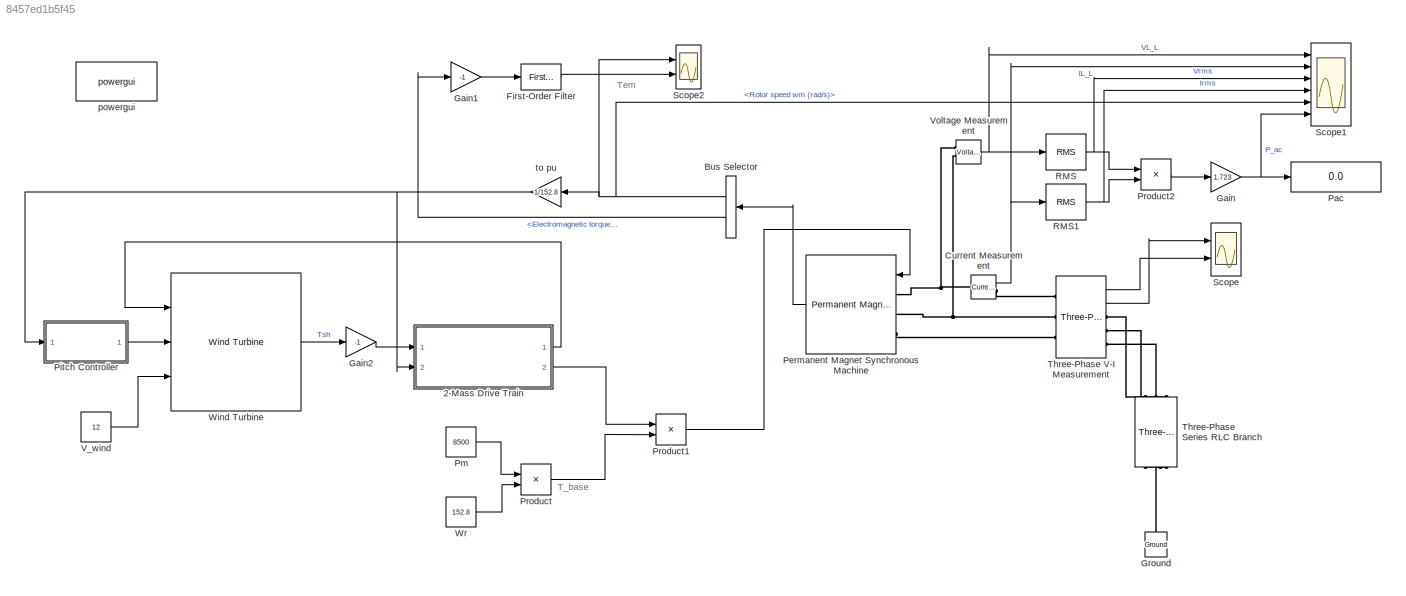
MODEL slx_8457ed1b5f45
KIND model
CONFIG AbsTol = auto
CONFIG EnableMultiTasking = off
CONFIG FixedStep = 10e-6
CONFIG MaxStep = auto
CONFIG MinStep = auto
CONFIG RelTol = 1e-3
CONFIG SampleTimeConstraint = Unconstrained
CONFIG Solver = ode4
CONFIG SolverName = ode4
CONFIG StartTime = 0.0
CONFIG StopTime = 15
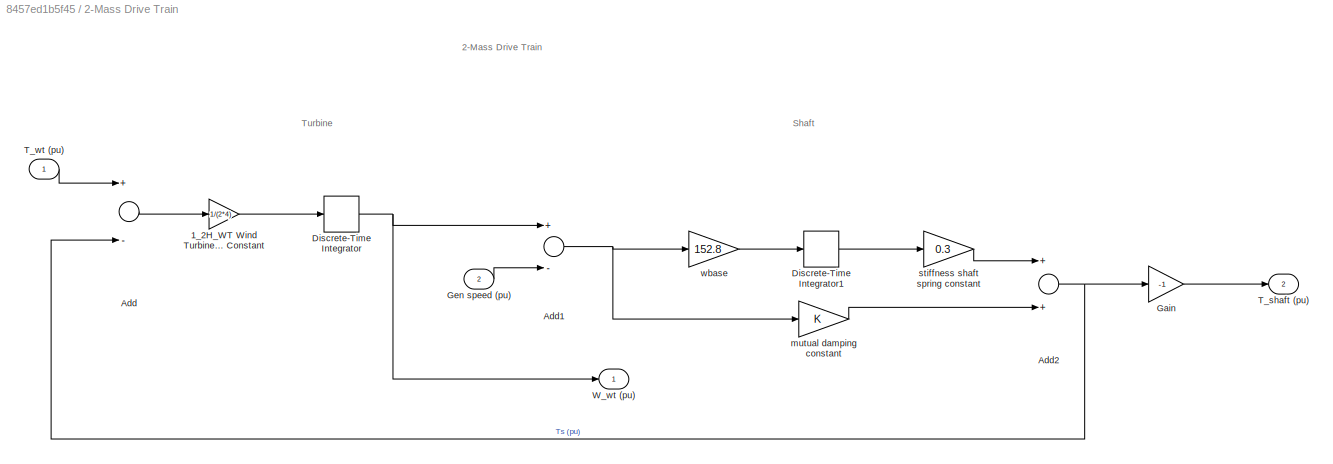
BLOCK [SubSystem] 2-Mass Drive Train
  Ports = [2, 2]
  RequestExecContextInheritance = off
BLOCK [Gain] 2-Mass Drive Train/1_2H_WT Wind Turbine Inertia Constant
  Gain = 1/(2*4)
  OutDataTypeStr = Inherit: Inherit via internal rule
  ParamDataTypeStr = Inherit: Inherit via internal rule
  SaturateOnIntegerOverflow = off
BLOCK [Sum] 2-Mass Drive Train/Add
  InputSameDT = off
  Inputs = +-
  OutDataTypeStr = Inherit: Inherit via internal rule
  Ports = [2, 1]
  SaturateOnIntegerOverflow = off
BLOCK [Sum] 2-Mass Drive Train/Add1
  InputSameDT = off
  Inputs = +-
  OutDataTypeStr = Inherit: Inherit via internal rule
  Ports = [2, 1]
  SaturateOnIntegerOverflow = off
BLOCK [Sum] 2-Mass Drive Train/Add2
  InputSameDT = off
  OutDataTypeStr = Inherit: Inherit via internal rule
  Ports = [2, 1]
  SaturateOnIntegerOverflow = off
BLOCK [DiscreteIntegrator] 2-Mass Drive Train/Discrete-Time Integrator
  ICPrevOutput = DiscIntNeverNeededParam
  ICPrevScaledInput = DiscIntNeverNeededParam
  InitialConditionSetting = Auto
  Ports = [1, 1]
  SampleTime = -1
BLOCK [DiscreteIntegrator] 2-Mass Drive Train/Discrete-Time Integrator1
  ICPrevOutput = DiscIntNeverNeededParam
  ICPrevScaledInput = DiscIntNeverNeededParam
  InitialCondition = 1/0.3
  InitialConditionSetting = Auto
  Ports = [1, 1]
  SampleTime = 50e-6
BLOCK [Gain] 2-Mass Drive Train/Gain
  Gain = -1
  OutDataTypeStr = Inherit: Inherit via internal rule
  ParamDataTypeStr = Inherit: Inherit via internal rule
  SaturateOnIntegerOverflow = off
BLOCK [Inport] 2-Mass Drive Train/Gen speed (pu)
  IconDisplay = Port number
  Port = 2
BLOCK [Outport] 2-Mass Drive Train/T_shaft (pu)
  IconDisplay = Port number
  Port = 2
BLOCK [Inport] 2-Mass Drive Train/T_wt (pu)
  IconDisplay = Port number
BLOCK [Outport] 2-Mass Drive Train/W_wt (pu)
  IconDisplay = Port number
BLOCK [Gain] 2-Mass Drive Train/mutual damping constant
  OutDataTypeStr = Inherit: Inherit via internal rule
  ParamDataTypeStr = Inherit: Inherit via internal rule
  SaturateOnIntegerOverflow = off
BLOCK [Gain] 2-Mass Drive Train/stiffness shaft spring constant
  Gain = 0.3
  OutDataTypeStr = Inherit: Inherit via internal rule
  ParamDataTypeStr = Inherit: Inherit via internal rule
  SaturateOnIntegerOverflow = off
BLOCK [Gain] 2-Mass Drive Train/wbase
  Gain = 152.8
  OutDataTypeStr = Inherit: Inherit via internal rule
  ParamDataTypeStr = Inherit: Inherit via internal rule
  SaturateOnIntegerOverflow = off
BLOCK [BusSelector] Bus Selector
  OutputAsBus = off
  OutputSignals = Rotor speed wm (rad/s),Electromagnetic torque Te (N*m)
  Ports = [1, 2]
BLOCK [Reference] Current Measurement  REF=powerlib/Measurements/Current Measurement
  Ports = [0, 1, 0, 0, 0, 1, 1]
  SourceBlock = powerlib/Measurements/Current Measurement
  SourceProductBaseCode = PS
  SourceProductName = Simscape Power Systems
  SourceType = Current Measurement
  UserDataPersistent = on
BLOCK [Reference] First-Order Filter  REF=powerlib_meascontrol/Filters/First-Order
Filter
  Ports = [1, 1]
  SourceBlock = powerlib_meascontrol/Filters/First-Order\nFilter
  SourceProductBaseCode = PS
  SourceProductName = Simscape Power Systems
  SourceType = First-Order Filter
BLOCK [Gain] Gain
  Gain = 1.723
  OutDataTypeStr = Inherit: Inherit via internal rule
  ParamDataTypeStr = Inherit: Inherit via internal rule
  SaturateOnIntegerOverflow = off
BLOCK [Gain] Gain1
  Gain = -1
  OutDataTypeStr = Inherit: Inherit via internal rule
  ParamDataTypeStr = Inherit: Inherit via internal rule
  SaturateOnIntegerOverflow = off
BLOCK [Gain] Gain2
  Gain = -1
  OutDataTypeStr = Inherit: Inherit via internal rule
  ParamDataTypeStr = Inherit: Inherit via internal rule
  SaturateOnIntegerOverflow = off
BLOCK [Reference] Ground  REF=powerlib/Elements/Ground
  Ports = [0, 0, 0, 0, 0, 1]
  SourceBlock = powerlib/Elements/Ground
  SourceProductBaseCode = PS
  SourceProductName = Simscape Power Systems
  SourceType = Ground
BLOCK [Display] Pac
  Decimation = 1
  Ports = [1]
BLOCK [Reference] Permanent Magnet Synchronous Machine  REF=powerlib/Machines/Permanent Magnet
Synchronous Machine
  Ports = [1, 1, 0, 0, 0, 3]
  SourceBlock = powerlib/Machines/Permanent Magnet\nSynchronous Machine
  SourceProductBaseCode = PS
  SourceProductName = Simscape Power Systems
  SourceType = Permanent Magnet Synchronous Machine
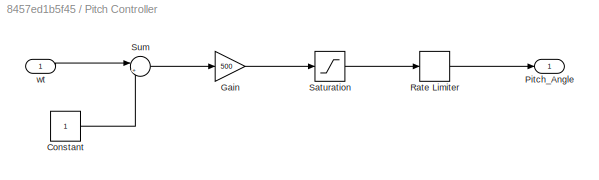
BLOCK [SubSystem] Pitch Controller
  Ports = [1, 1]
  RequestExecContextInheritance = off
BLOCK [Constant] Pitch Controller/Constant
BLOCK [Gain] Pitch Controller/Gain
  Gain = 500
  OutDataTypeStr = Inherit: Inherit via internal rule
  ParamDataTypeStr = Inherit: Inherit via internal rule
  SaturateOnIntegerOverflow = off
BLOCK [Outport] Pitch Controller/Pitch_Angle
  IconDisplay = Port number
BLOCK [RateLimiter] Pitch Controller/Rate Limiter
  FallingSlewLimit = -2
  RisingSlewLimit = 2
  SampleTimeMode = inherited
BLOCK [Saturate] Pitch Controller/Saturation
  InputPortMap = u0
  LowerLimit = 0
  Ports = [1, 1]
  UpperLimit = 45
BLOCK [Sum] Pitch Controller/Sum
  IconShape = round
  InputSameDT = off
  Inputs = |+-
  OutDataTypeStr = Inherit: Inherit via internal rule
  Ports = [2, 1]
  SaturateOnIntegerOverflow = off
BLOCK [Inport] Pitch Controller/wt
  IconDisplay = Port number
BLOCK [Constant] Pm
  Value = 8500
BLOCK [Product] Product
  InputSameDT = off
  Inputs = */
  OutDataTypeStr = Inherit: Inherit via internal rule
  Ports = [2, 1]
  RndMeth = Floor
  SaturateOnIntegerOverflow = off
BLOCK [Product] Product1
  InputSameDT = off
  OutDataTypeStr = Inherit: Inherit via internal rule
  Ports = [2, 1]
  RndMeth = Floor
  SaturateOnIntegerOverflow = off
BLOCK [Product] Product2
  InputSameDT = off
  OutDataTypeStr = Inherit: Inherit via internal rule
  Ports = [2, 1]
  RndMeth = Floor
  SaturateOnIntegerOverflow = off
BLOCK [Reference] RMS  REF=powerlib_meascontrol/Measurements/RMS
  Ports = [1, 1]
  SourceBlock = powerlib_meascontrol/Measurements/RMS
  SourceProductBaseCode = PS
  SourceProductName = Simscape Power Systems
  SourceType = RMS
BLOCK [Reference] RMS1  REF=powerlib_meascontrol/Measurements/RMS
  Ports = [1, 1]
  SourceBlock = powerlib_meascontrol/Measurements/RMS
  SourceProductBaseCode = PS
  SourceProductName = Simscape Power Systems
  SourceType = RMS
BLOCK [Scope] Scope
  Floating = off
  NumInputPorts = 2
  Ports = [2]
  ScopeSpecificationString = Simulink.scopes.TimeScopeBlockCfg('CurrentConfiguration', extmgr.ConfigurationSet(extmgr.Configuration('Core','General UI',true),extmgr.Configuration('Core','Source UI',true),extmgr.Configuration('Sources','WiredSimulink',true),extmgr.Configuration('Visuals','Time Domain',true,'SerializedDisplays',{struct('MinYLimReal','-7.18298','MaxYLimReal','12.16162','YLabelReal','','MinYLimMag','0.00000','Max...<+2191ch>
BLOCK [Scope] Scope1
  Floating = off
  NumInputPorts = 6
  Ports = [6]
  ScopeSpecificationString = Simulink.scopes.TimeScopeBlockCfg('CurrentConfiguration', extmgr.ConfigurationSet(extmgr.Configuration('Core','General UI',true),extmgr.Configuration('Core','Source UI',true),extmgr.Configuration('Sources','WiredSimulink',true,'DataLoggingVariableName','ScopeData1'),extmgr.Configuration('Visuals','Time Domain',true,'SerializedDisplays',{struct('MinYLimReal','-3.06125','MaxYLimReal','3.06149','YLab...<+4942ch>
BLOCK [Scope] Scope2
  Floating = off
  NumInputPorts = 2
  Ports = [2]
  ScopeSpecificationString = Simulink.scopes.TimeScopeBlockCfg('CurrentConfiguration', extmgr.ConfigurationSet(extmgr.Configuration('Core','General UI',true),extmgr.Configuration('Core','Source UI',true),extmgr.Configuration('Sources','WiredSimulink',true,'DataLoggingVariableName','ScopeData2'),extmgr.Configuration('Visuals','Time Domain',true),extmgr.Configuration('Tools','Plot Navigation',true),extmgr.Configuration('Tools',...<+40ch>
BLOCK [Reference] Three-Phase Series RLC Branch  REF=powerlib/Elements/Three-Phase
Series RLC Branch
  AttributesFormatString = \n
  Ports = [0, 0, 0, 0, 0, 3, 3]
  SourceBlock = powerlib/Elements/Three-Phase\nSeries RLC Branch
  SourceProductBaseCode = PS
  SourceProductName = Simscape Power Systems
  SourceType = Three-Phase Series RLC Branch
BLOCK [Reference] Three-Phase V-I Measurement  REF=powerlib/Measurements/Three-Phase
V-I Measurement
  Ports = [0, 2, 0, 0, 0, 3, 3]
  SourceBlock = powerlib/Measurements/Three-Phase\nV-I Measurement
  SourceProductBaseCode = PS
  SourceProductName = Simscape Power Systems
  SourceType = Three-Phase VI Measurement
BLOCK [Constant] V_wind
  Value = 12
BLOCK [Reference] Voltage Measurement  REF=powerlib/Measurements/Voltage Measurement
  Ports = [0, 1, 0, 0, 0, 2]
  SourceBlock = powerlib/Measurements/Voltage Measurement
  SourceProductBaseCode = PS
  SourceProductName = Simscape Power Systems
  SourceType = Voltage Measurement
  UserDataPersistent = on
BLOCK [Reference] Wind Turbine  REF=re_lib/Wind Generation/Wind Turbine
  Ports = [3, 1]
  SourceBlock = re_lib/Wind Generation/Wind Turbine
  SourceProductBaseCode = PS
  SourceProductName = Simscape Power Systems
  SourceType = Wind Turbine
BLOCK [Constant] Wr
  Value = 152.8
BLOCK [Reference] powergui  REF=powerlib/powergui
  Ports = []
  Priority = 1
  SourceBlock = powerlib/powergui
  SourceProductBaseCode = PS
  SourceProductName = Simscape Power Systems
  SourceType = PSB option menu block
BLOCK [Gain] to pu
  Gain = 1/152.8
  OutDataTypeStr = Inherit: Inherit via internal rule
  ParamDataTypeStr = Inherit: Inherit via internal rule
  SaturateOnIntegerOverflow = off
ANNOTATION (root): T_base
ANNOTATION (root): Tem
ANNOTATION 2-Mass Drive Train: Shaft
ANNOTATION 2-Mass Drive Train: Turbine
ANNOTATION 2-Mass Drive Train: 2-Mass Drive Train
LINE 2-Mass Drive Train/1_2H_WT Wind Turbine Inertia Constant:1 -> 2-Mass Drive Train/Discrete-Time Integrator:1
NET 2-Mass Drive Train/Add1:1 -> 2-Mass Drive Train/mutual damping constant:1, 2-Mass Drive Train/wbase:1
NET 2-Mass Drive Train/Add2:1 -> 2-Mass Drive Train/Add:2, 2-Mass Drive Train/Gain:1
LINE 2-Mass Drive Train/Add:1 -> 2-Mass Drive Train/1_2H_WT Wind Turbine Inertia Constant:1
LINE 2-Mass Drive Train/Discrete-Time Integrator1:1 -> 2-Mass Drive Train/stiffness shaft spring constant:1
NET 2-Mass Drive Train/Discrete-Time Integrator:1 -> 2-Mass Drive Train/Add1:1, 2-Mass Drive Train/W_wt (pu):1
LINE 2-Mass Drive Train/Gain:1 -> 2-Mass Drive Train/T_shaft (pu):1
LINE 2-Mass Drive Train/Gen speed (pu):1 -> 2-Mass Drive Train/Add1:2
LINE 2-Mass Drive Train/T_wt (pu):1 -> 2-Mass Drive Train/Add:1
LINE 2-Mass Drive Train/mutual damping constant:1 -> 2-Mass Drive Train/Add2:2
LINE 2-Mass Drive Train/stiffness shaft spring constant:1 -> 2-Mass Drive Train/Add2:1
LINE 2-Mass Drive Train/wbase:1 -> 2-Mass Drive Train/Discrete-Time Integrator1:1
LINE 2-Mass Drive Train:1 -> Wind Turbine:1
LINE 2-Mass Drive Train:2 -> Product1:1
NET Bus Selector:1 -> Scope1:5, Scope2:1, to pu:1
LINE Bus Selector:2 -> Gain1:1
NET Current Measurement:1 -> RMS1:1, Scope1:2
LINE First-Order Filter:1 -> Scope2:2
LINE Gain1:1 -> First-Order Filter:1
LINE Gain2:1 -> 2-Mass Drive Train:1
NET Gain:1 -> Pac:1, Scope1:6
LINE Permanent Magnet Synchronous Machine:1 -> Bus Selector:1
LINE Pitch Controller/Constant:1 -> Pitch Controller/Sum:2
LINE Pitch Controller/Gain:1 -> Pitch Controller/Saturation:1
LINE Pitch Controller/Rate Limiter:1 -> Pitch Controller/Pitch_Angle:1
LINE Pitch Controller/Saturation:1 -> Pitch Controller/Rate Limiter:1
LINE Pitch Controller/Sum:1 -> Pitch Controller/Gain:1
LINE Pitch Controller/wt:1 -> Pitch Controller/Sum:1
LINE Pitch Controller:1 -> Wind Turbine:2
LINE Pm:1 -> Product:1
LINE Product1:1 -> Permanent Magnet Synchronous Machine:1
LINE Product2:1 -> Gain:1
LINE Product:1 -> Product1:2
NET RMS1:1 -> Product2:2, Scope1:4
NET RMS:1 -> Product2:1, Scope1:3
LINE Three-Phase V-I Measurement:1 -> Scope:2
LINE Three-Phase V-I Measurement:2 -> Scope:1
LINE V_wind:1 -> Wind Turbine:3
NET Voltage Measurement:1 -> RMS:1, Scope1:1
LINE Wind Turbine:1 -> Gain2:1
LINE Wr:1 -> Product:2
NET to pu:1 -> 2-Mass Drive Train:2, Pitch Controller:1
PNET net1: Current Measurement:LConn1 -- Permanent Magnet Synchronous Machine:LConn1 -- Voltage Measurement:LConn1
PLINE Current Measurement:RConn1 -- Three-Phase V-I Measurement:LConn1
PNET net2: Ground:LConn1 -- Three-Phase Series RLC Branch:RConn1 -- Three-Phase Series RLC Branch:RConn2 -- Three-Phase Series RLC Branch:RConn3
PNET net3: Permanent Magnet Synchronous Machine:LConn2 -- Three-Phase V-I Measurement:LConn2 -- Voltage Measurement:LConn2
PLINE Permanent Magnet Synchronous Machine:LConn3 -- Three-Phase V-I Measurement:LConn3
PLINE Three-Phase Series RLC Branch:LConn1 -- Three-Phase V-I Measurement:RConn1
PLINE Three-Phase Series RLC Branch:LConn2 -- Three-Phase V-I Measurement:RConn2
PLINE Three-Phase Series RLC Branch:LConn3 -- Three-Phase V-I Measurement:RConn3
note: NET lines group one-source signal fan-out (src -> all destinations, sorted); 1:1 wires keep LINE; PNET lines group multi-terminal physical nets as a canonical sorted terminal list (undirected conserving connections); 2-terminal nets keep the pairwise PLINE form
